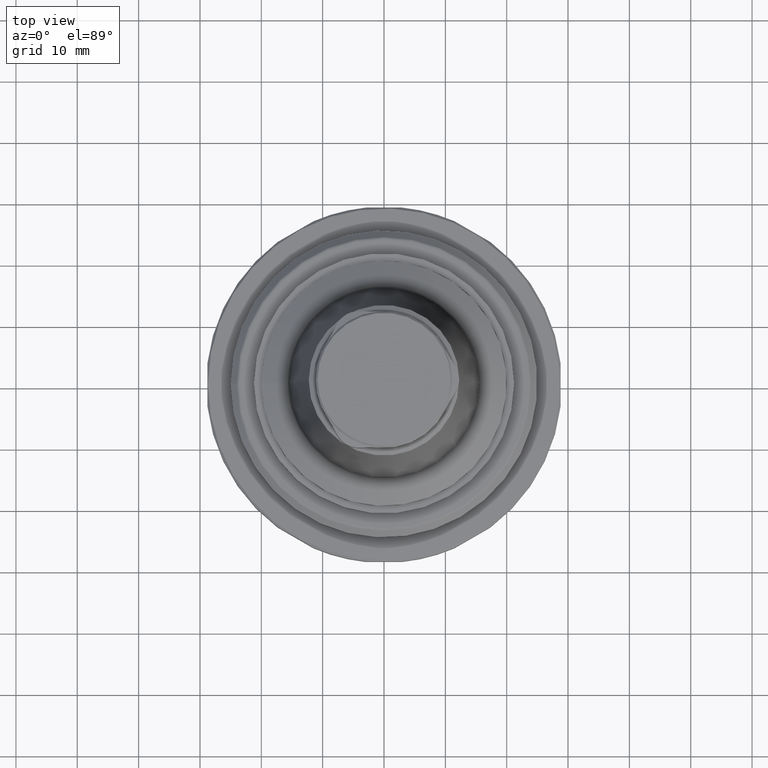
[diagram: clean part render]
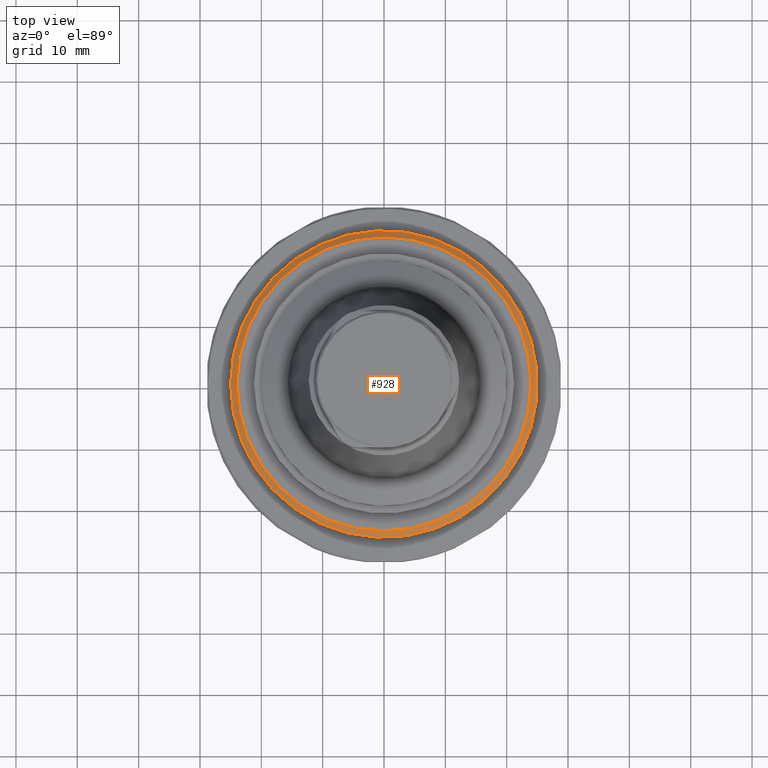
[diagram: same view with one face highlighted and labeled with its STEP entity id]
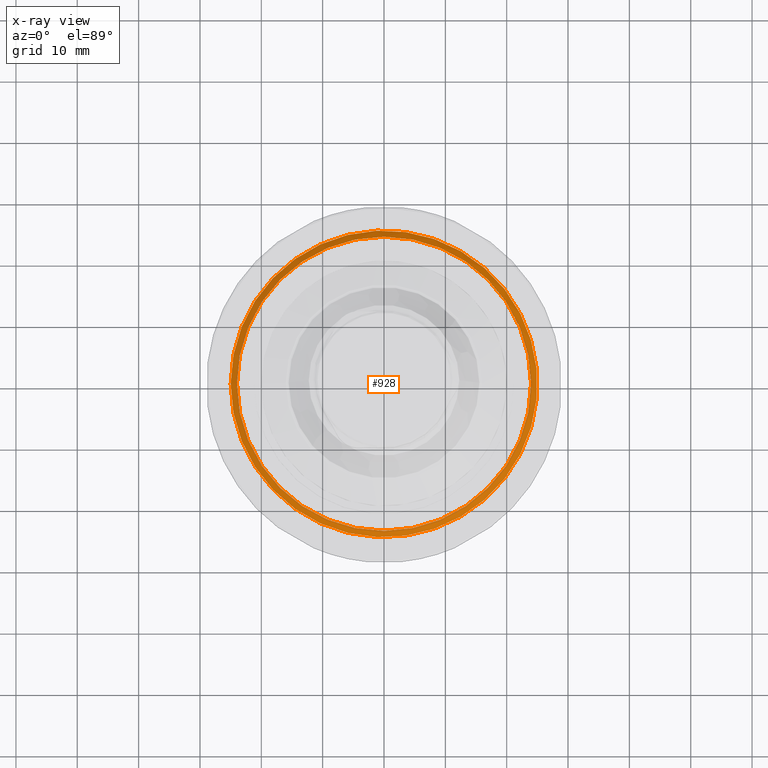
[diagram: x-ray of the same camera — body ghosted, the highlighted face saturated]
A machine part, top view. The second image highlights one B-rep face of the part: STEP entity #928.
The next image is the same camera in x-ray: the body ghosted, the highlighted face saturated — about 0% of this face is hidden behind the body in this view.
In plain terms, the highlighted conical surface has half-angle 45 deg.
Its self-contained STEP definition (entity closure, byte-faithful):
#37=CONICAL_SURFACE('',#1032,23.9757350979542,0.785398163397447);
#275=ORIENTED_EDGE('',*,*,#466,.F.);
#276=ORIENTED_EDGE('',*,*,#467,.T.);
#466=EDGE_CURVE('',#573,#573,#646,.T.);
#467=EDGE_CURVE('',#574,#574,#647,.T.);
#573=VERTEX_POINT('',#1582);
#574=VERTEX_POINT('',#1585);
#646=CIRCLE('',#1031,25.);
#647=CIRCLE('',#1033,23.9757350979542);
#720=EDGE_LOOP('',(#275));
#721=EDGE_LOOP('',(#276));
#816=FACE_BOUND('',#720,.T.);
#817=FACE_BOUND('',#721,.T.);
#928=ADVANCED_FACE('',(#816,#817),#37,.T.);
#1031=AXIS2_PLACEMENT_3D('',#1581,#1221,#1222);
#1032=AXIS2_PLACEMENT_3D('',#1583,#1223,#1224);
#1033=AXIS2_PLACEMENT_3D('',#1584,#1225,#1226);
#1221=DIRECTION('',(-5.47430718319515E-16,-4.76420379815137E-18,-1.));
#1222=DIRECTION('',(-1.,9.15933995315755E-16,5.47430716006892E-16));
#1223=DIRECTION('',(-5.47430718319515E-16,-4.76420379815137E-18,-1.));
#1224=DIRECTION('',(-1.,9.15933995315755E-16,5.47430716006892E-16));
#1225=DIRECTION('',(-5.47430718319515E-16,-4.76420379815137E-18,-1.));
#1226=DIRECTION('',(-1.,9.15933995315755E-16,5.47430716006892E-16));
#1581=CARTESIAN_POINT('',(-9.16814202302441E-14,-9.81416669815891E-14,3.80407078564789));
#1582=CARTESIAN_POINT('',(-25.0000000000001,-7.52433170986953E-14,3.8040707856479));
#1583=CARTESIAN_POINT('',(-9.11207061591677E-14,-9.81367871748525E-14,4.82833568769373));
#1584=CARTESIAN_POINT('',(-9.11207061591677E-14,-9.81367871748525E-14,4.82833568769373));
#1585=CARTESIAN_POINT('',(-23.9757350979543,-7.61765963359512E-14,4.82833568769374));